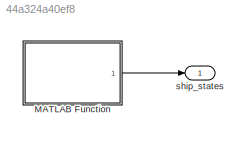
MODEL slx_44a324a40ef8
KIND model
CONFIG AbsTol = auto
CONFIG EnableMultiTasking = off
CONFIG FixedStep = auto
CONFIG MaxStep = auto
CONFIG MinStep = auto
CONFIG RelTol = 1e-3
CONFIG SampleTimeConstraint = Unconstrained
CONFIG Solver = FixedStepDiscrete
CONFIG SolverName = FixedStepDiscrete
CONFIG StartTime = 0.0
CONFIG StopTime = 10.0
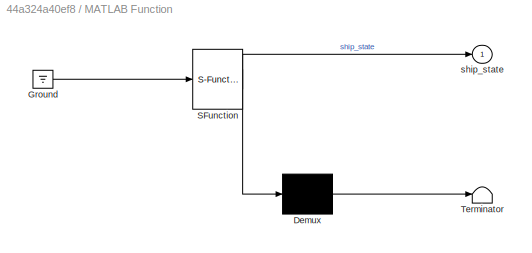
BLOCK [SubSystem] MATLAB Function
  ErrorFcn = Stateflow.Translate.translate
  PermitHierarchicalResolution = ExplicitOnly
  Ports = [0, 1]
  RequestExecContextInheritance = off
  SFBlockType = MATLAB Function
  TreatAsAtomicUnit = on
BLOCK [Demux] MATLAB Function/ Demux 
  Outputs = 1
  Ports = [1, 1]
BLOCK [Ground] MATLAB Function/ Ground 
BLOCK [S-Function] MATLAB Function/ SFunction 
  EnableBusSupport = on
  FunctionName = sf_sfun
  PortCounts = [1 2]
  Ports = [1, 2]
  SFcnIsStateOwnerBlock = off
  SFunctionDeploymentMode = off
  Tag = Stateflow S-Function 2
BLOCK [Terminator] MATLAB Function/ Terminator 
BLOCK [Outport] MATLAB Function/ship_state
BLOCK [Outport] ship_states
  OutDataTypeStr = Bus: ShipStates
LINE MATLAB Function:1 -> ship_states:1
CHART MATLAB Function states=1 transitions=1
  STATE_LABEL 'eML_blk_kernel()'
  STATE_LABEL "SCRIPT:\nfunction ship_state =read_state\n    coder.extrinsic('evalin');\n    ship_state.SAS = false;\n    ship_state.RCS = false;\n    ship_state.throttle = 1.0;\n    ship_state.SAS = evalin('base', 'vessel_control.getSAS();');\n    ship_state.RCS = evalin('base', 'vessel_control.getRCS();');\n    ship_state.throttle = evalin('base', 'vessel_control.getThrottle();');\n    evalin('base', 'AAtmp = vessel_fl...<+1645ch>"
CHART  states=0 transitions=0
